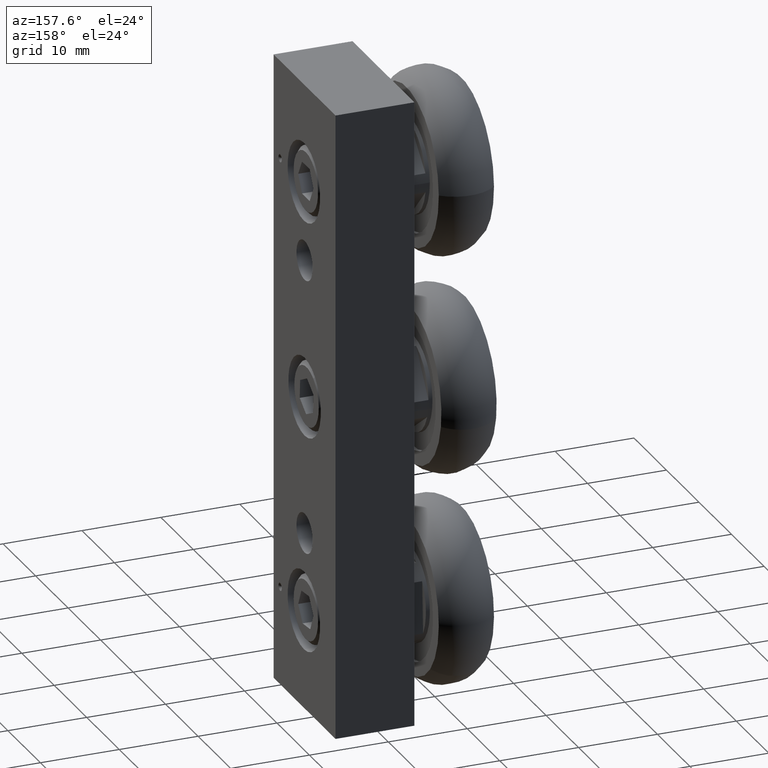
[diagram: clean part render]
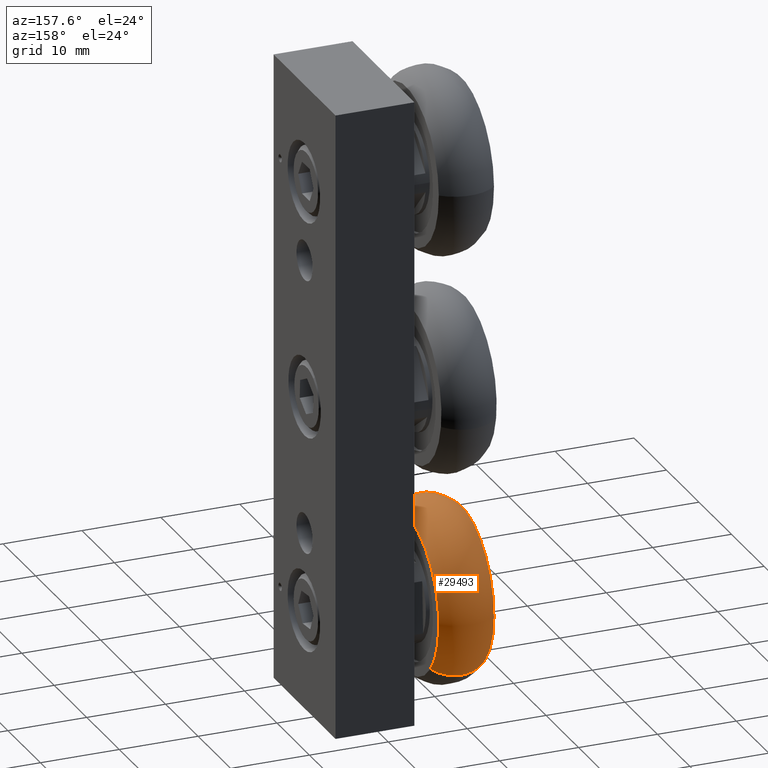
[diagram: same view with one face highlighted and labeled with its STEP entity id]
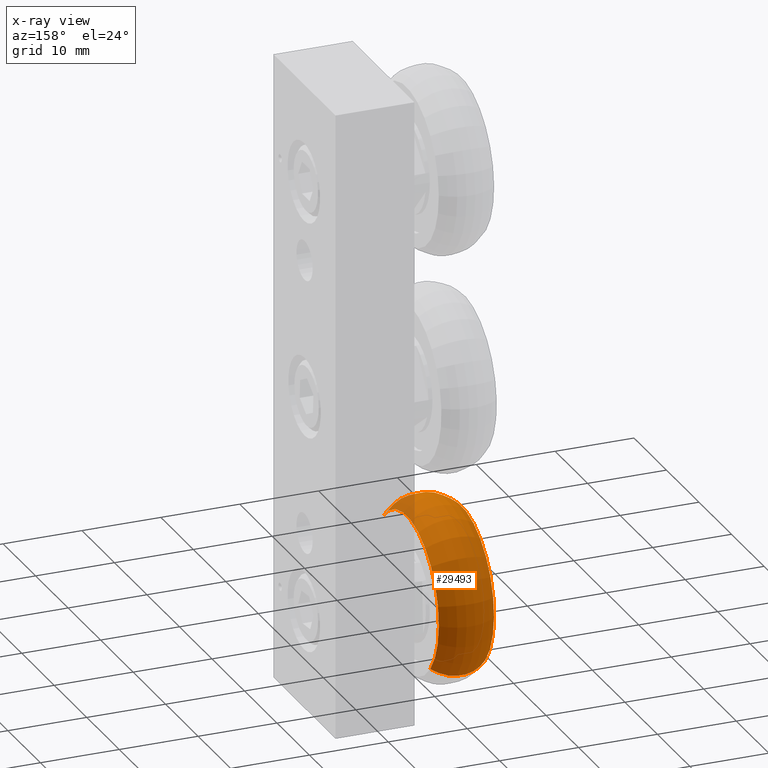
[diagram: x-ray of the same camera — body ghosted, the highlighted face saturated]
A machine part, auxiliary view. The second image highlights one B-rep face of the part: STEP entity #29493.
The next image is the same camera in x-ray: the body ghosted, the highlighted face saturated — about 4% of this face is hidden behind the body in this view.
In plain terms, the highlighted toroidal blend (fillet) surface has major radius 6.4 mm and minor (blend) radius 5 mm.
Its self-contained STEP definition (entity closure, byte-faithful):
#2840 = CARTESIAN_POINT ( 'NONE',  ( 0.2559055115368674693, -0.008661417322834357585, -3.444881889763779625 ) ) ;
#2987 = DIRECTION ( 'NONE',  ( 4.084288962104705882E-17, -0.6754018541424225974, -0.7374498867183978401 ) ) ;
#3134 = CIRCLE ( 'NONE', #10237, 0.3925478037114737417 ) ;
#3215 = DIRECTION ( 'NONE',  ( 0.000000000000000000, -0.7374498867183977291, 0.6754018541424227084 ) ) ;
#6512 = EDGE_CURVE ( 'NONE', #46972, #57246, #29897, .T. ) ;
#7861 = VERTEX_POINT ( 'NONE', #39037 ) ;
#9245 = ORIENTED_EDGE ( 'NONE', *, *, #6512, .T. ) ;
#9834 = CARTESIAN_POINT ( 'NONE',  ( 0.2559055115368674693, 0.2808229160557478843, -3.710009404230043994 ) ) ;
#10056 = VERTEX_POINT ( 'NONE', #46207 ) ;
#10237 = AXIS2_PLACEMENT_3D ( 'NONE', #50308, #16922, #3215 ) ;
#12076 = DIRECTION ( 'NONE',  ( 0.000000000000000000, -0.7374498867183977291, 0.6754018541424227084 ) ) ;
#13348 = DIRECTION ( 'NONE',  ( -1.000000000000000000, -4.122974739858164500E-35, -5.538395266801810043E-17 ) ) ;
#13525 = ORIENTED_EDGE ( 'NONE', *, *, #14312, .T. ) ;
#13674 = ORIENTED_EDGE ( 'NONE', *, *, #48810, .F. ) ;
#14312 = EDGE_CURVE ( 'NONE', #10056, #46972, #3134, .T. ) ;
#16922 = DIRECTION ( 'NONE',  ( -1.000000000000000000, -4.122974739858164500E-35, -5.538395266801810043E-17 ) ) ;
#20230 = CIRCLE ( 'NONE', #31462, 0.1968503937007876070 ) ;
#20759 = FACE_OUTER_BOUND ( 'NONE', #50097, .T. ) ;
#29493 = ADVANCED_FACE ( 'NONE', ( #20759 ), #40001, .T. ) ;
#29897 = CIRCLE ( 'NONE', #62724, 0.1968503937007872462 ) ;
#31462 = AXIS2_PLACEMENT_3D ( 'NONE', #47509, #2987, #32342 ) ;
#32342 = DIRECTION ( 'NONE',  ( 0.000000000000000000, 0.7374498867183971740, -0.6754018541424231525 ) ) ;
#36694 = CIRCLE ( 'NONE', #45969, 0.3925478037114737417 ) ;
#39037 = CARTESIAN_POINT ( 'NONE',  ( 0.2559055115368674693, -0.2981457507014164121, -3.179754375297514812 ) ) ;
#40001 = TOROIDAL_SURFACE ( 'NONE', #62518, 0.2519685039370078705, 0.1968503937007874127 ) ;
#45969 = AXIS2_PLACEMENT_3D ( 'NONE', #2840, #13348, #12076 ) ;
#46207 = CARTESIAN_POINT ( 'NONE',  ( 0.5314960627179700081, -0.2981457507014164121, -3.179754375297514812 ) ) ;
#46439 = DIRECTION ( 'NONE',  ( -3.740642432171559841E-17, -0.7374498867183978401, 0.6754018541424224864 ) ) ;
#46721 = CARTESIAN_POINT ( 'NONE',  ( 0.3937007871274187387, 0.1771527273621163190, -3.615061884508326440 ) ) ;
#46972 = VERTEX_POINT ( 'NONE', #57405 ) ;
#47509 = CARTESIAN_POINT ( 'NONE',  ( 0.3937007871274187387, -0.1944755620077849856, -3.274701895019232367 ) ) ;
#48361 = EDGE_CURVE ( 'NONE', #10056, #7861, #20230, .T. ) ;
#48810 = EDGE_CURVE ( 'NONE', #7861, #57246, #36694, .T. ) ;
#50097 = EDGE_LOOP ( 'NONE', ( #13525, #9245, #13674, #53501 ) ) ;
#50308 = CARTESIAN_POINT ( 'NONE',  ( 0.5314960627179700081, -0.008661417322834357585, -3.444881889763779625 ) ) ;
#51822 = DIRECTION ( 'NONE',  ( 0.000000000000000000, -0.7374498867183985062, 0.6754018541424217092 ) ) ;
#51862 = DIRECTION ( 'NONE',  ( -1.000000000000000000, -4.122974739858164500E-35, -5.538395266801810043E-17 ) ) ;
#53501 = ORIENTED_EDGE ( 'NONE', *, *, #48361, .F. ) ;
#55431 = CARTESIAN_POINT ( 'NONE',  ( 0.3937007871274187387, -0.008661417322834357585, -3.444881889763779625 ) ) ;
#56969 = DIRECTION ( 'NONE',  ( -4.084288962104706499E-17, 0.6754018541424224864, 0.7374498867183979511 ) ) ;
#57246 = VERTEX_POINT ( 'NONE', #9834 ) ;
#57405 = CARTESIAN_POINT ( 'NONE',  ( 0.5314960627179700081, 0.2808229160557478843, -3.710009404230043994 ) ) ;
#62518 = AXIS2_PLACEMENT_3D ( 'NONE', #55431, #51862, #46439 ) ;
#62724 = AXIS2_PLACEMENT_3D ( 'NONE', #46721, #56969, #51822 ) ;